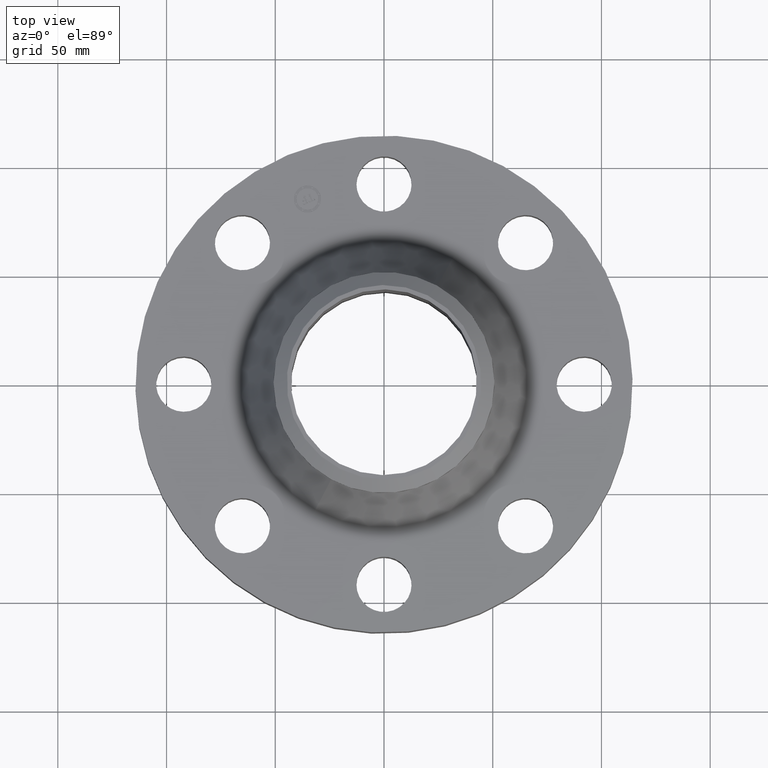
[diagram: clean part render]
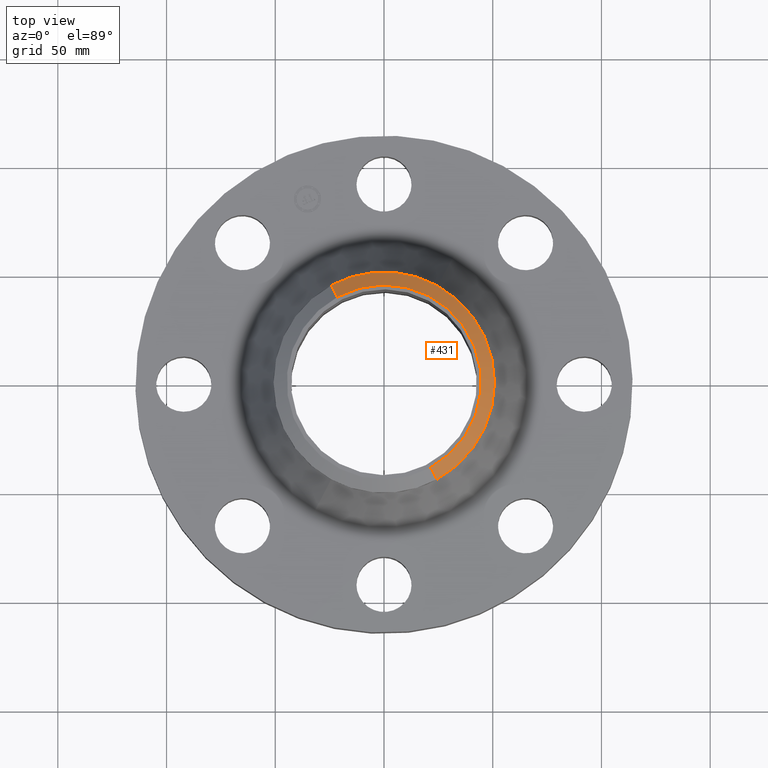
[diagram: same view with one face highlighted and labeled with its STEP entity id]
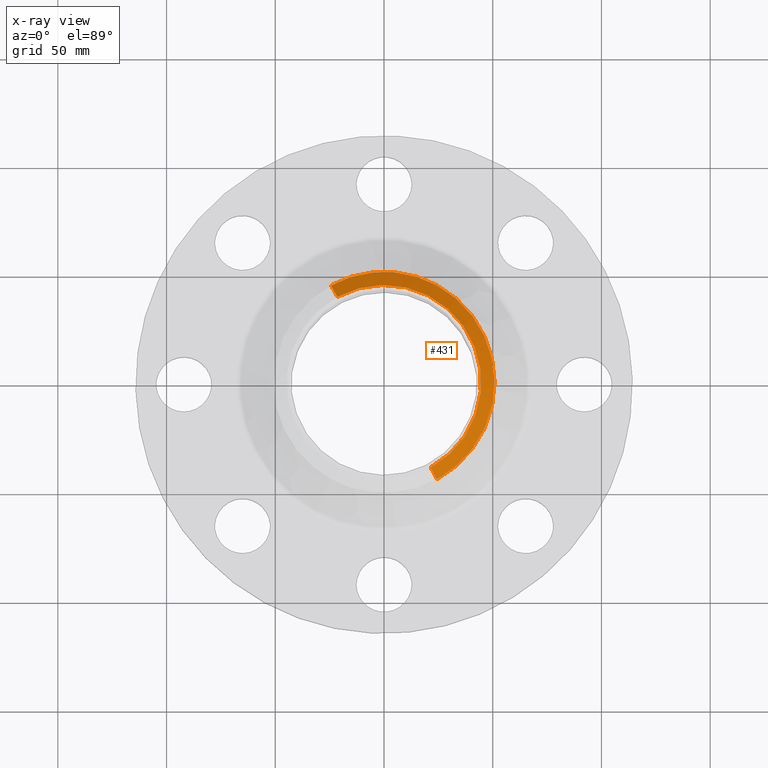
[diagram: x-ray of the same camera — body ghosted, the highlighted face saturated]
A machine part, top view. The second image highlights one B-rep face of the part: STEP entity #431.
The next image is the same camera in x-ray: the body ghosted, the highlighted face saturated — about 0% of this face is hidden behind the body in this view.
In plain terms, the highlighted conical surface has half-angle 52.5 deg.
Its self-contained STEP definition (entity closure, byte-faithful):
#278=AXIS2_PLACEMENT_3D('Circle Axis2P3D',#276,#277,$) ;
#305=AXIS2_PLACEMENT_3D('Circle Axis2P3D',#303,#304,$) ;
#319=AXIS2_PLACEMENT_3D('Cone Axis2P3D',#316,#317,#318) ;
#412=AXIS2_PLACEMENT_3D('Circle Axis2P3D',#410,#411,$) ;
#273=CARTESIAN_POINT('Vertex',(0.958851077212,1.75516512379,3.19640946571)) ;
#276=CARTESIAN_POINT('Axis2P3D Location',(0.,0.,3.19640946571)) ;
#280=CARTESIAN_POINT('Vertex',(0.958851077212,-1.75516512379,3.19640946571)) ;
#300=CARTESIAN_POINT('Vertex',(-0.958851077212,1.75516512379,3.19640946571)) ;
#303=CARTESIAN_POINT('Axis2P3D Location',(0.,0.,3.19640946571)) ;
#316=CARTESIAN_POINT('Axis2P3D Location',(0.,0.,3.38000000001)) ;
#321=CARTESIAN_POINT('Line Origine',(0.901497437779,-1.65017999101,3.28820473286)) ;
#325=CARTESIAN_POINT('Vertex',(0.844143798345,-1.54519485823,3.38000000001)) ;
#332=CARTESIAN_POINT('Vertex',(-0.844143798345,1.54519485823,3.38000000001)) ;
#335=CARTESIAN_POINT('Line Origine',(-0.901497437779,1.65017999101,3.28820473286)) ;
#410=CARTESIAN_POINT('Axis2P3D Location',(0.,0.,3.38000000001)) ;
#277=DIRECTION('Axis2P3D Direction',(0.,0.,-0.0393700787402)) ;
#304=DIRECTION('Axis2P3D Direction',(0.,0.,-0.0393700787402)) ;
#317=DIRECTION('Axis2P3D Direction',(-0.,-0.,-0.0393700787402)) ;
#318=DIRECTION('Axis2P3D XDirection',(-0.0188750212049,0.0345504945626,0.)) ;
#322=DIRECTION('Vector Direction',(0.014974561121,-0.02741075027,-0.023966985394)) ;
#336=DIRECTION('Vector Direction',(-0.014974561121,0.02741075027,-0.023966985394)) ;
#411=DIRECTION('Axis2P3D Direction',(0.,0.,-0.0393700787402)) ;
#323=VECTOR('Line Direction',#322,0.0393700787402) ;
#337=VECTOR('Line Direction',#336,0.0393700787402) ;
#425=ORIENTED_EDGE('',*,*,#339,.F.) ;
#426=ORIENTED_EDGE('',*,*,#414,.F.) ;
#427=ORIENTED_EDGE('',*,*,#327,.T.) ;
#428=ORIENTED_EDGE('',*,*,#282,.T.) ;
#429=ORIENTED_EDGE('',*,*,#307,.F.) ;
#431=ADVANCED_FACE('PartBody',(#430),#320,.T.) ;
#279=CIRCLE('generated circle',#278,2.00000000001) ;
#306=CIRCLE('generated circle',#305,2.00000000001) ;
#413=CIRCLE('generated circle',#412,1.76074015749) ;
#320=CONICAL_SURFACE('Cone',#319,1.76074015749,0.916297857297) ;
#282=EDGE_CURVE('',#281,#274,#279,.F.) ;
#307=EDGE_CURVE('',#301,#274,#306,.T.) ;
#327=EDGE_CURVE('',#326,#281,#324,.T.) ;
#339=EDGE_CURVE('',#333,#301,#338,.T.) ;
#414=EDGE_CURVE('',#326,#333,#413,.F.) ;
#424=EDGE_LOOP('',(#425,#426,#427,#428,#429)) ;
#430=FACE_OUTER_BOUND('',#424,.T.) ;
#324=LINE('Line',#321,#323) ;
#338=LINE('Line',#335,#337) ;
#274=VERTEX_POINT('',#273) ;
#281=VERTEX_POINT('',#280) ;
#301=VERTEX_POINT('',#300) ;
#326=VERTEX_POINT('',#325) ;
#333=VERTEX_POINT('',#332) ;